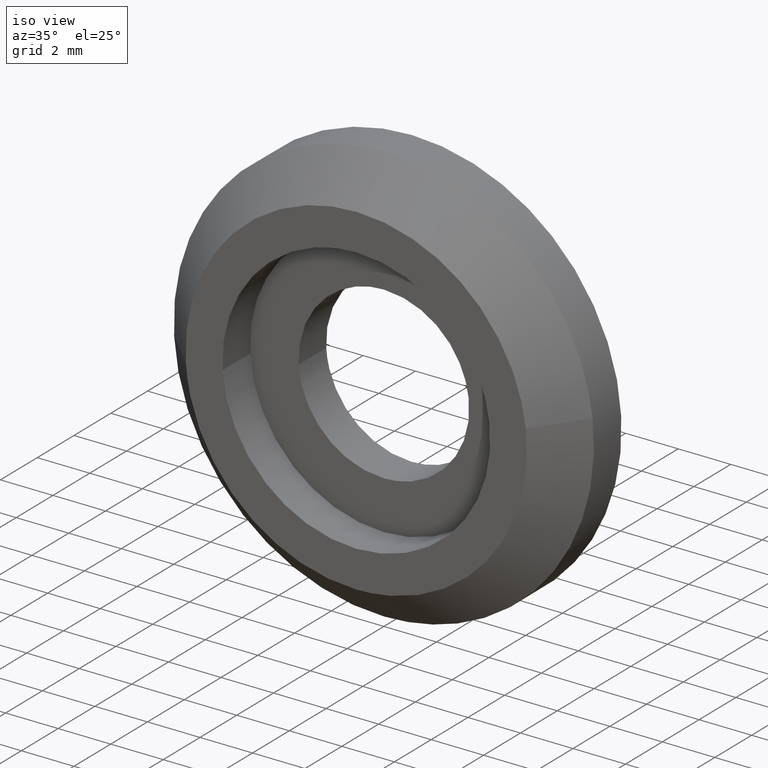
[diagram: clean part render]
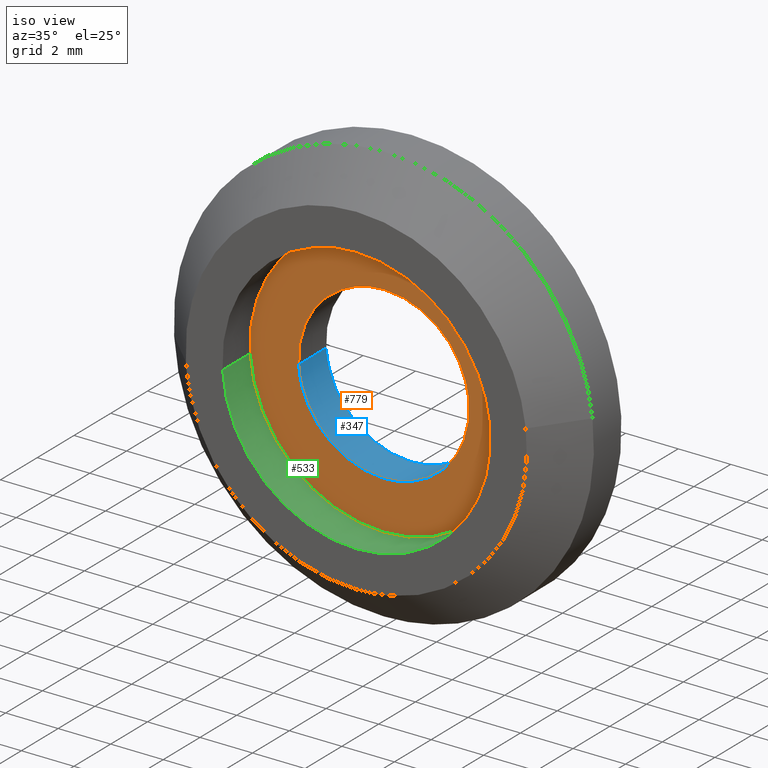
[diagram: same view with three faces highlighted in distinct colors, each labeled with its STEP entity id]
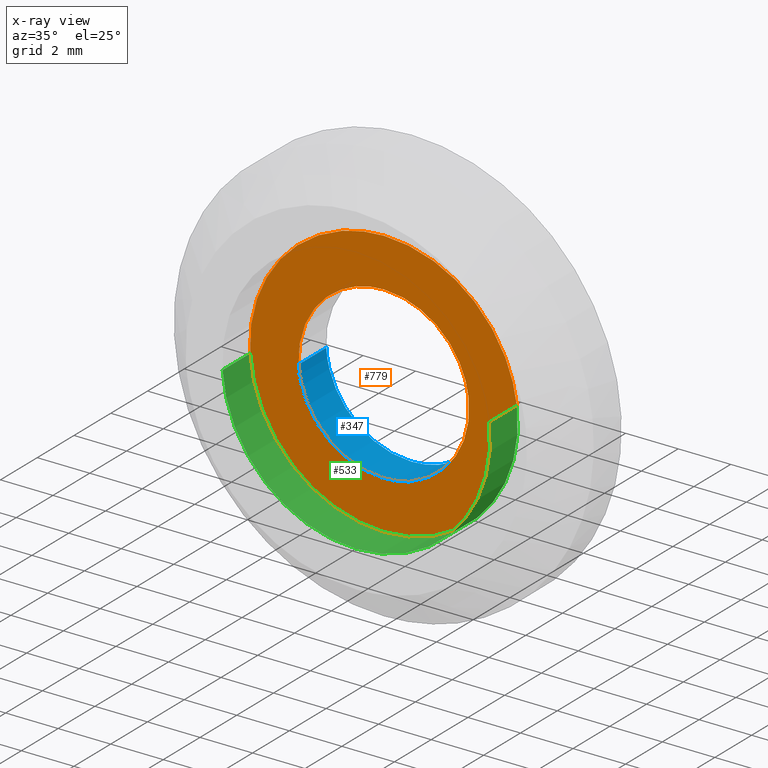
[diagram: x-ray of the same camera — body ghosted, the three highlighted faces saturated]
A machine part, iso view with three faces highlighted in distinct colors.
The next image is the same camera in x-ray (body ghosted, the three faces saturated) — at least one of them is partly hidden behind the body in this view.
Their STEP definitions:

[orange] entity #779 — the highlighted face is a freeform B-spline surface patch.
#301=CARTESIAN_POINT('',(-3.243938284306497,3.469447E-017,-0.198404656197849));
#302=VERTEX_POINT('',#301);
#308=CARTESIAN_POINT('',(0.0,0.0,-3.250000000000000));
#309=VERTEX_POINT('',#308);
#310=CARTESIAN_POINT('',(0.0,0.0,-3.250000000000000));
#311=CARTESIAN_POINT('',(-3.057297641984092,0.0,-3.250000000000000));
#312=CARTESIAN_POINT('',(-3.243938284306497,3.469447E-017,-0.198404656197849));
#320=(BOUNDED_CURVE()B_SPLINE_CURVE(2,(#310,#311,#312),.UNSPECIFIED.,.F.,.U.)B_SPLINE_CURVE_WITH_KNOTS((3,3),(0.500000000000000,0.739333126988512),.UNSPECIFIED.)CURVE()GEOMETRIC_REPRESENTATION_ITEM()RATIONAL_B_SPLINE_CURVE((1.0,0.719603800270584,0.976072394756659))REPRESENTATION_ITEM(''));
#321=EDGE_CURVE('',#309,#302,#320,.T.);
#323=CARTESIAN_POINT('',(3.227281480315944,3.194357E-017,0.383606890957840));
#324=VERTEX_POINT('',#323);
#325=CARTESIAN_POINT('',(3.227281480315944,3.194357E-017,0.383606890957840));
#326=CARTESIAN_POINT('',(3.250000000000000,0.0,0.192476179922436));
#327=CARTESIAN_POINT('',(3.250000000000000,0.0,0.0));
#328=CARTESIAN_POINT('',(3.250000000000000,0.0,-3.250000000000000));
#329=CARTESIAN_POINT('',(0.0,0.0,-3.250000000000000));
#337=(BOUNDED_CURVE()B_SPLINE_CURVE(2,(#325,#326,#327,#328,#329),.UNSPECIFIED.,.F.,.U.)B_SPLINE_CURVE_WITH_KNOTS((3,2,3),(0.229562702447560,0.250000000000000,0.500000000000000),.UNSPECIFIED.)CURVE()GEOMETRIC_REPRESENTATION_ITEM()RATIONAL_B_SPLINE_CURVE((0.956027202904301,0.976056216544070,1.0,0.707106781186547,1.0))REPRESENTATION_ITEM(''));
#338=EDGE_CURVE('',#324,#309,#337,.T.);
#382=CARTESIAN_POINT('',(0.0,0.0,3.250000000000000));
#383=VERTEX_POINT('',#382);
#384=CARTESIAN_POINT('',(0.0,0.0,3.250000000000000));
#385=CARTESIAN_POINT('',(2.886571147015454,0.0,3.250000000000000));
#386=CARTESIAN_POINT('',(3.227281480315944,3.194357E-017,0.383606890957840));
#394=(BOUNDED_CURVE()B_SPLINE_CURVE(2,(#384,#385,#386),.UNSPECIFIED.,.F.,.U.)B_SPLINE_CURVE_WITH_KNOTS((3,3),(0.0,0.229562702447560),.UNSPECIFIED.)CURVE()GEOMETRIC_REPRESENTATION_ITEM()RATIONAL_B_SPLINE_CURVE((1.0,0.731050564642477,0.956027202904301))REPRESENTATION_ITEM(''));
#395=EDGE_CURVE('',#383,#324,#394,.T.);
#397=CARTESIAN_POINT('',(-3.243938284306497,3.469447E-017,-0.198404656197849));
#398=CARTESIAN_POINT('',(-3.250000000000000,0.0,-0.099294927733059));
#399=CARTESIAN_POINT('',(-3.250000000000000,0.0,0.0));
#400=CARTESIAN_POINT('',(-3.250000000000000,0.0,3.250000000000000));
#401=CARTESIAN_POINT('',(0.0,0.0,3.250000000000000));
#409=(BOUNDED_CURVE()B_SPLINE_CURVE(2,(#397,#398,#399,#400,#401),.UNSPECIFIED.,.F.,.U.)B_SPLINE_CURVE_WITH_KNOTS((3,2,3),(0.739333126988512,0.750000000000000,1.0),.UNSPECIFIED.)CURVE()GEOMETRIC_REPRESENTATION_ITEM()RATIONAL_B_SPLINE_CURVE((0.976072394756659,0.987502980915963,1.0,0.707106781186547,1.0))REPRESENTATION_ITEM(''));
#410=EDGE_CURVE('',#302,#383,#409,.T.);
#453=CARTESIAN_POINT('',(5.064348875071119,-2.917867E-014,0.601972151814212));
#454=VERTEX_POINT('',#453);
#455=CARTESIAN_POINT('',(0.0,0.0,-5.100000000000001));
#456=VERTEX_POINT('',#455);
#457=CARTESIAN_POINT('',(5.064348875071119,-2.917867E-014,0.601972151814212));
#458=CARTESIAN_POINT('',(5.100000000000001,0.0,0.302041774833430));
#459=CARTESIAN_POINT('',(5.100000000000001,0.0,0.0));
#460=CARTESIAN_POINT('',(5.100000000000001,0.0,-5.100000000000001));
#461=CARTESIAN_POINT('',(0.0,0.0,-5.100000000000001));
#469=(BOUNDED_CURVE()B_SPLINE_CURVE(2,(#457,#458,#459,#460,#461),.UNSPECIFIED.,.F.,.U.)B_SPLINE_CURVE_WITH_KNOTS((3,2,3),(0.229562555106003,0.250000000000000,0.500000000000000),.UNSPECIFIED.)CURVE()GEOMETRIC_REPRESENTATION_ITEM()RATIONAL_B_SPLINE_CURVE((0.956026914108389,0.976056043922698,1.0,0.707106781186548,1.0))REPRESENTATION_ITEM(''));
#470=EDGE_CURVE('',#454,#456,#469,.T.);
#472=CARTESIAN_POINT('',(-5.090487553960555,9.225259E-015,-0.311346210786117));
#473=VERTEX_POINT('',#472);
#474=CARTESIAN_POINT('',(0.0,0.0,-5.100000000000001));
#475=CARTESIAN_POINT('',(-4.797602207275556,0.0,-5.100000000000001));
#476=CARTESIAN_POINT('',(-5.090487553960555,9.225259E-015,-0.311346210786117));
#484=(BOUNDED_CURVE()B_SPLINE_CURVE(2,(#474,#475,#476),.UNSPECIFIED.,.F.,.U.)B_SPLINE_CURVE_WITH_KNOTS((3,3),(0.500000000000000,0.739333007691040),.UNSPECIFIED.)CURVE()GEOMETRIC_REPRESENTATION_ITEM()RATIONAL_B_SPLINE_CURVE((1.0,0.719603940036266,0.976072139079234))REPRESENTATION_ITEM(''));
#485=EDGE_CURVE('',#456,#473,#484,.T.);
#552=CARTESIAN_POINT('',(0.0,0.0,5.100000000000001));
#553=VERTEX_POINT('',#552);
#554=CARTESIAN_POINT('',(0.0,0.0,5.100000000000001));
#555=CARTESIAN_POINT('',(4.529692284562907,0.0,5.100000000000001));
#556=CARTESIAN_POINT('',(5.064348875071119,-2.917867E-014,0.601972151814212));
#564=(BOUNDED_CURVE()B_SPLINE_CURVE(2,(#554,#555,#556),.UNSPECIFIED.,.F.,.U.)B_SPLINE_CURVE_WITH_KNOTS((3,3),(0.0,0.229562555106003),.UNSPECIFIED.)CURVE()GEOMETRIC_REPRESENTATION_ITEM()RATIONAL_B_SPLINE_CURVE((1.0,0.731050737263850,0.956026914108389))REPRESENTATION_ITEM(''));
#565=EDGE_CURVE('',#553,#454,#564,.T.);
#599=CARTESIAN_POINT('',(-5.090487553960555,9.225259E-015,-0.311346210786117));
#600=CARTESIAN_POINT('',(-5.100000000000001,0.0,-0.155818420522195));
#601=CARTESIAN_POINT('',(-5.100000000000001,0.0,0.0));
#602=CARTESIAN_POINT('',(-5.100000000000001,0.0,5.100000000000001));
#603=CARTESIAN_POINT('',(0.0,0.0,5.100000000000001));
#611=(BOUNDED_CURVE()B_SPLINE_CURVE(2,(#599,#600,#601,#602,#603),.UNSPECIFIED.,.F.,.U.)B_SPLINE_CURVE_WITH_KNOTS((3,2,3),(0.739333007691040,0.750000000000000,1.0),.UNSPECIFIED.)CURVE()GEOMETRIC_REPRESENTATION_ITEM()RATIONAL_B_SPLINE_CURVE((0.976072139079234,0.987502841150282,1.0,0.707106781186548,1.0))REPRESENTATION_ITEM(''));
#612=EDGE_CURVE('',#473,#553,#611,.T.);
#762=CARTESIAN_POINT('',(-5.609366138014462,0.0,5.609489884480118));
#763=CARTESIAN_POINT('',(-5.609366138014462,0.0,-5.609490249260544));
#764=CARTESIAN_POINT('',(5.609397235545782,0.0,5.609489884480118));
#765=CARTESIAN_POINT('',(5.609397235545782,0.0,-5.609490249260544));
#766=B_SPLINE_SURFACE_WITH_KNOTS('',1,1,((#762,#764),(#763,#765)),.UNSPECIFIED.,.F.,.F.,.U.,(2,2),(2,2),(0.0,11.218980133740660),(0.0,11.218763373560240),.UNSPECIFIED.);
#767=ORIENTED_EDGE('',*,*,#612,.F.);
#768=ORIENTED_EDGE('',*,*,#485,.F.);
#769=ORIENTED_EDGE('',*,*,#470,.F.);
#770=ORIENTED_EDGE('',*,*,#565,.F.);
#771=EDGE_LOOP('',(#767,#768,#769,#770));
#772=FACE_OUTER_BOUND('',#771,.T.);
#773=ORIENTED_EDGE('',*,*,#321,.T.);
#774=ORIENTED_EDGE('',*,*,#410,.T.);
#775=ORIENTED_EDGE('',*,*,#395,.T.);
#776=ORIENTED_EDGE('',*,*,#338,.T.);
#777=EDGE_LOOP('',(#773,#774,#775,#776));
#778=FACE_BOUND('',#777,.T.);
#779=ADVANCED_FACE('',(#772,#778),#766,.T.);

[blue] entity #347 — the highlighted face is a freeform B-spline surface patch.
#245=CARTESIAN_POINT('',(3.227280960681916,-0.037500000000000,0.383611262634465));
#246=CARTESIAN_POINT('',(3.238259750207968,-0.037500000000000,0.291247868073427));
#247=CARTESIAN_POINT('',(3.243938094871067,-0.037500000000000,0.198407753488285));
#248=CARTESIAN_POINT('',(3.442345848359353,-0.037500000000000,-3.045530341382781));
#249=CARTESIAN_POINT('',(0.198407753488285,-0.037500000000000,-3.243938094871067));
#250=CARTESIAN_POINT('',(-3.045530341382781,-0.037500000000000,-3.442345848359353));
#251=CARTESIAN_POINT('',(-3.243938094871067,-0.037500000000000,-0.198407753488285));
#252=CARTESIAN_POINT('',(3.227280960681916,1.538437500000000,0.383611262634465));
#253=CARTESIAN_POINT('',(3.238259750207968,1.538437500000001,0.291247868073427));
#254=CARTESIAN_POINT('',(3.243938094871067,1.538437500000000,0.198407753488285));
#255=CARTESIAN_POINT('',(3.442345848359353,1.538437500000001,-3.045530341382781));
#256=CARTESIAN_POINT('',(0.198407753488285,1.538437500000000,-3.243938094871067));
#257=CARTESIAN_POINT('',(-3.045530341382781,1.538437500000001,-3.442345848359353));
#258=CARTESIAN_POINT('',(-3.243938094871067,1.538437500000000,-0.198407753488285));
#266=(BOUNDED_SURFACE()B_SPLINE_SURFACE(2,1,((#245,#252),(#246,#253),(#247,#254),(#248,#255),(#249,#256),(#250,#257),(#251,#258)),.UNSPECIFIED.,.F.,.F.,.U.)B_SPLINE_SURFACE_WITH_KNOTS((3,2,2,3),(2,2),(0.0,0.215391052434010,5.600167363284244,10.984943674134479),(0.0,1.0),.UNSPECIFIED.)GEOMETRIC_REPRESENTATION_ITEM()RATIONAL_B_SPLINE_SURFACE(((0.977505800795127,0.977505800795127),(0.988284271247462,0.988284271247462),(1.0,1.0),(0.707106781186548,0.707106781186548),(1.0,1.0),(0.707106781186548,0.707106781186548),(1.0,1.0)))REPRESENTATION_ITEM('')SURFACE());
#267=CARTESIAN_POINT('',(3.227281486811727,1.500000000000071,0.383606836308235));
#268=VERTEX_POINT('',#267);
#269=CARTESIAN_POINT('',(0.0,1.500000000000000,-3.250000000000000));
#270=VERTEX_POINT('',#269);
#271=CARTESIAN_POINT('',(3.227281486811727,1.500000000000071,0.383606836308235));
#272=CARTESIAN_POINT('',(3.250000000000000,1.500000000000000,0.192476152308770));
#273=CARTESIAN_POINT('',(3.250000000000000,1.500000000000000,0.0));
#274=CARTESIAN_POINT('',(3.250000000000000,1.500000000000000,-3.250000000000000));
#275=CARTESIAN_POINT('',(0.0,1.500000000000000,-3.250000000000000));
#283=(BOUNDED_CURVE()B_SPLINE_CURVE(2,(#271,#272,#273,#274,#275),.UNSPECIFIED.,.F.,.U.)B_SPLINE_CURVE_WITH_KNOTS((3,2,3),(0.229562705309400,0.250000000000000,0.500000000000000),.UNSPECIFIED.)CURVE()GEOMETRIC_REPRESENTATION_ITEM()RATIONAL_B_SPLINE_CURVE((0.956027208513637,0.976056219896924,1.0,0.707106781186547,1.0))REPRESENTATION_ITEM(''));
#284=EDGE_CURVE('',#268,#270,#283,.T.);
#285=ORIENTED_EDGE('',*,*,#284,.T.);
#286=CARTESIAN_POINT('',(-3.243938286670342,1.499999999999952,-0.198404617548119));
#287=VERTEX_POINT('',#286);
#288=CARTESIAN_POINT('',(0.0,1.500000000000000,-3.250000000000000));
#289=CARTESIAN_POINT('',(-3.057297678478167,1.500000000000000,-3.250000000000000));
#290=CARTESIAN_POINT('',(-3.243938286670342,1.499999999999951,-0.198404617548119));
#298=(BOUNDED_CURVE()B_SPLINE_CURVE(2,(#288,#289,#290),.UNSPECIFIED.,.F.,.U.)B_SPLINE_CURVE_WITH_KNOTS((3,3),(0.500000000000000,0.739333129044312),.UNSPECIFIED.)CURVE()GEOMETRIC_REPRESENTATION_ITEM()RATIONAL_B_SPLINE_CURVE((1.0,0.719603797862065,0.976072399162636))REPRESENTATION_ITEM(''));
#299=EDGE_CURVE('',#270,#287,#298,.T.);
#300=ORIENTED_EDGE('',*,*,#299,.T.);
#301=CARTESIAN_POINT('',(-3.243938284306497,3.469447E-017,-0.198404656197849));
#302=VERTEX_POINT('',#301);
#303=CARTESIAN_POINT('',(-3.243938284306497,3.469447E-017,-0.198404656197849));
#304=CARTESIAN_POINT('',(-3.243938286670342,1.499999999999952,-0.198404617548119));
#305=QUASI_UNIFORM_CURVE('',1,(#303,#304),.UNSPECIFIED.,.F.,.U.);
#306=EDGE_CURVE('',#302,#287,#305,.T.);
#307=ORIENTED_EDGE('',*,*,#306,.F.);
#308=CARTESIAN_POINT('',(0.0,0.0,-3.250000000000000));
#309=VERTEX_POINT('',#308);
#310=CARTESIAN_POINT('',(0.0,0.0,-3.250000000000000));
#311=CARTESIAN_POINT('',(-3.057297641984092,0.0,-3.250000000000000));
#312=CARTESIAN_POINT('',(-3.243938284306497,3.469447E-017,-0.198404656197849));
#320=(BOUNDED_CURVE()B_SPLINE_CURVE(2,(#310,#311,#312),.UNSPECIFIED.,.F.,.U.)B_SPLINE_CURVE_WITH_KNOTS((3,3),(0.500000000000000,0.739333126988512),.UNSPECIFIED.)CURVE()GEOMETRIC_REPRESENTATION_ITEM()RATIONAL_B_SPLINE_CURVE((1.0,0.719603800270584,0.976072394756659))REPRESENTATION_ITEM(''));
#321=EDGE_CURVE('',#309,#302,#320,.T.);
#322=ORIENTED_EDGE('',*,*,#321,.F.);
#323=CARTESIAN_POINT('',(3.227281480315944,3.194357E-017,0.383606890957840));
#324=VERTEX_POINT('',#323);
#325=CARTESIAN_POINT('',(3.227281480315944,3.194357E-017,0.383606890957840));
#326=CARTESIAN_POINT('',(3.250000000000000,0.0,0.192476179922436));
#327=CARTESIAN_POINT('',(3.250000000000000,0.0,0.0));
#328=CARTESIAN_POINT('',(3.250000000000000,0.0,-3.250000000000000));
#329=CARTESIAN_POINT('',(0.0,0.0,-3.250000000000000));
#337=(BOUNDED_CURVE()B_SPLINE_CURVE(2,(#325,#326,#327,#328,#329),.UNSPECIFIED.,.F.,.U.)B_SPLINE_CURVE_WITH_KNOTS((3,2,3),(0.229562702447560,0.250000000000000,0.500000000000000),.UNSPECIFIED.)CURVE()GEOMETRIC_REPRESENTATION_ITEM()RATIONAL_B_SPLINE_CURVE((0.956027202904301,0.976056216544070,1.0,0.707106781186547,1.0))REPRESENTATION_ITEM(''));
#338=EDGE_CURVE('',#324,#309,#337,.T.);
#339=ORIENTED_EDGE('',*,*,#338,.F.);
#340=CARTESIAN_POINT('',(3.227281480315944,3.194357E-017,0.383606890957840));
#341=CARTESIAN_POINT('',(3.227281486811727,1.500000000000071,0.383606836308235));
#342=QUASI_UNIFORM_CURVE('',1,(#340,#341),.UNSPECIFIED.,.F.,.U.);
#343=EDGE_CURVE('',#324,#268,#342,.T.);
#344=ORIENTED_EDGE('',*,*,#343,.T.);
#345=EDGE_LOOP('',(#285,#300,#307,#322,#339,#344));
#346=FACE_OUTER_BOUND('',#345,.T.);
#347=ADVANCED_FACE('',(#346),#266,.F.);

[green] entity #533 — the highlighted face is a freeform B-spline surface patch.
#431=CARTESIAN_POINT('',(5.064348584454699,-1.537500000000001,0.601974596749468));
#432=CARTESIAN_POINT('',(5.081576838787889,-1.537500000000000,0.457035116053686));
#433=CARTESIAN_POINT('',(5.090487471951521,-1.537500000000000,0.311347551627771));
#434=CARTESIAN_POINT('',(5.401835023579292,-1.537500000000000,-4.779139920323751));
#435=CARTESIAN_POINT('',(0.311347551627771,-1.537500000000000,-5.090487471951521));
#436=CARTESIAN_POINT('',(-4.779139920323751,-1.537500000000000,-5.401835023579292));
#437=CARTESIAN_POINT('',(-5.090487471951521,-1.537500000000000,-0.311347551627771));
#438=CARTESIAN_POINT('',(5.064348584454699,0.038437500000000,0.601974596749468));
#439=CARTESIAN_POINT('',(5.081576838787889,0.038437500000000,0.457035116053686));
#440=CARTESIAN_POINT('',(5.090487471951521,0.038437500000000,0.311347551627771));
#441=CARTESIAN_POINT('',(5.401835023579292,0.038437500000000,-4.779139920323751));
#442=CARTESIAN_POINT('',(0.311347551627771,0.038437500000000,-5.090487471951521));
#443=CARTESIAN_POINT('',(-4.779139920323751,0.038437500000000,-5.401835023579292));
#444=CARTESIAN_POINT('',(-5.090487471951521,0.038437500000000,-0.311347551627771));
#452=(BOUNDED_SURFACE()B_SPLINE_SURFACE(2,1,((#431,#438),(#432,#439),(#433,#440),(#434,#441),(#435,#442),(#436,#443),(#437,#444)),.UNSPECIFIED.,.F.,.F.,.U.)B_SPLINE_SURFACE_WITH_KNOTS((3,2,2,3),(2,2),(0.0,0.337998266896446,8.787954939307584,17.237911611718719),(0.0,1.0),.UNSPECIFIED.)GEOMETRIC_REPRESENTATION_ITEM()RATIONAL_B_SPLINE_SURFACE(((0.977505800795127,0.977505800795127),(0.988284271247462,0.988284271247462),(1.0,1.0),(0.707106781186548,0.707106781186548),(1.0,1.0),(0.707106781186548,0.707106781186548),(1.0,1.0)))REPRESENTATION_ITEM('')SURFACE());
#453=CARTESIAN_POINT('',(5.064348875071119,-2.917867E-014,0.601972151814212));
#454=VERTEX_POINT('',#453);
#455=CARTESIAN_POINT('',(0.0,0.0,-5.100000000000001));
#456=VERTEX_POINT('',#455);
#457=CARTESIAN_POINT('',(5.064348875071119,-2.917867E-014,0.601972151814212));
#458=CARTESIAN_POINT('',(5.100000000000001,0.0,0.302041774833430));
#459=CARTESIAN_POINT('',(5.100000000000001,0.0,0.0));
#460=CARTESIAN_POINT('',(5.100000000000001,0.0,-5.100000000000001));
#461=CARTESIAN_POINT('',(0.0,0.0,-5.100000000000001));
#469=(BOUNDED_CURVE()B_SPLINE_CURVE(2,(#457,#458,#459,#460,#461),.UNSPECIFIED.,.F.,.U.)B_SPLINE_CURVE_WITH_KNOTS((3,2,3),(0.229562555106003,0.250000000000000,0.500000000000000),.UNSPECIFIED.)CURVE()GEOMETRIC_REPRESENTATION_ITEM()RATIONAL_B_SPLINE_CURVE((0.956026914108389,0.976056043922698,1.0,0.707106781186548,1.0))REPRESENTATION_ITEM(''));
#470=EDGE_CURVE('',#454,#456,#469,.T.);
#471=ORIENTED_EDGE('',*,*,#470,.T.);
#472=CARTESIAN_POINT('',(-5.090487553960555,9.225259E-015,-0.311346210786117));
#473=VERTEX_POINT('',#472);
#474=CARTESIAN_POINT('',(0.0,0.0,-5.100000000000001));
#475=CARTESIAN_POINT('',(-4.797602207275556,0.0,-5.100000000000001));
#476=CARTESIAN_POINT('',(-5.090487553960555,9.225259E-015,-0.311346210786117));
#484=(BOUNDED_CURVE()B_SPLINE_CURVE(2,(#474,#475,#476),.UNSPECIFIED.,.F.,.U.)B_SPLINE_CURVE_WITH_KNOTS((3,3),(0.500000000000000,0.739333007691040),.UNSPECIFIED.)CURVE()GEOMETRIC_REPRESENTATION_ITEM()RATIONAL_B_SPLINE_CURVE((1.0,0.719603940036266,0.976072139079234))REPRESENTATION_ITEM(''));
#485=EDGE_CURVE('',#456,#473,#484,.T.);
#486=ORIENTED_EDGE('',*,*,#485,.T.);
#487=CARTESIAN_POINT('',(-5.090487552947563,-1.500000000000000,-0.311346227348550));
#488=VERTEX_POINT('',#487);
#489=CARTESIAN_POINT('',(-5.090487552947563,-1.500000000000000,-0.311346227348550));
#490=CARTESIAN_POINT('',(-5.090487553960555,9.225259E-015,-0.311346210786117));
#491=QUASI_UNIFORM_CURVE('',1,(#489,#490),.UNSPECIFIED.,.F.,.U.);
#492=EDGE_CURVE('',#488,#473,#491,.T.);
#493=ORIENTED_EDGE('',*,*,#492,.F.);
#494=CARTESIAN_POINT('',(0.0,-1.500000000000000,-5.100000000000001));
#495=VERTEX_POINT('',#494);
#496=CARTESIAN_POINT('',(0.0,-1.500000000000000,-5.100000000000001));
#497=CARTESIAN_POINT('',(-4.797602191636886,-1.500000000000000,-5.100000000000001));
#498=CARTESIAN_POINT('',(-5.090487552947563,-1.500000000000000,-0.311346227348550));
#506=(BOUNDED_CURVE()B_SPLINE_CURVE(2,(#496,#497,#498),.UNSPECIFIED.,.F.,.U.)B_SPLINE_CURVE_WITH_KNOTS((3,3),(0.500000000000000,0.739333007129641),.UNSPECIFIED.)CURVE()GEOMETRIC_REPRESENTATION_ITEM()RATIONAL_B_SPLINE_CURVE((1.0,0.719603940693986,0.976072137876048))REPRESENTATION_ITEM(''));
#507=EDGE_CURVE('',#495,#488,#506,.T.);
#508=ORIENTED_EDGE('',*,*,#507,.F.);
#509=CARTESIAN_POINT('',(5.064348871488670,-1.500000000000000,0.601972181953224));
#510=VERTEX_POINT('',#509);
#511=CARTESIAN_POINT('',(5.064348871488670,-1.500000000000000,0.601972181953224));
#512=CARTESIAN_POINT('',(5.100000000000001,-1.500000000000000,0.302041790062247));
#513=CARTESIAN_POINT('',(5.100000000000001,-1.500000000000000,0.0));
#514=CARTESIAN_POINT('',(5.100000000000001,-1.500000000000000,-5.100000000000001));
#515=CARTESIAN_POINT('',(0.0,-1.500000000000000,-5.100000000000001));
#523=(BOUNDED_CURVE()B_SPLINE_CURVE(2,(#511,#512,#513,#514,#515),.UNSPECIFIED.,.F.,.U.)B_SPLINE_CURVE_WITH_KNOTS((3,2,3),(0.229562554100228,0.250000000000000,0.500000000000000),.UNSPECIFIED.)CURVE()GEOMETRIC_REPRESENTATION_ITEM()RATIONAL_B_SPLINE_CURVE((0.956026912137029,0.976056042744360,1.0,0.707106781186548,1.0))REPRESENTATION_ITEM(''));
#524=EDGE_CURVE('',#510,#495,#523,.T.);
#525=ORIENTED_EDGE('',*,*,#524,.F.);
#526=CARTESIAN_POINT('',(5.064348871488670,-1.500000000000000,0.601972181953224));
#527=CARTESIAN_POINT('',(5.064348875071119,-2.917867E-014,0.601972151814212));
#528=QUASI_UNIFORM_CURVE('',1,(#526,#527),.UNSPECIFIED.,.F.,.U.);
#529=EDGE_CURVE('',#510,#454,#528,.T.);
#530=ORIENTED_EDGE('',*,*,#529,.T.);
#531=EDGE_LOOP('',(#471,#486,#493,#508,#525,#530));
#532=FACE_OUTER_BOUND('',#531,.T.);
#533=ADVANCED_FACE('',(#532),#452,.F.);